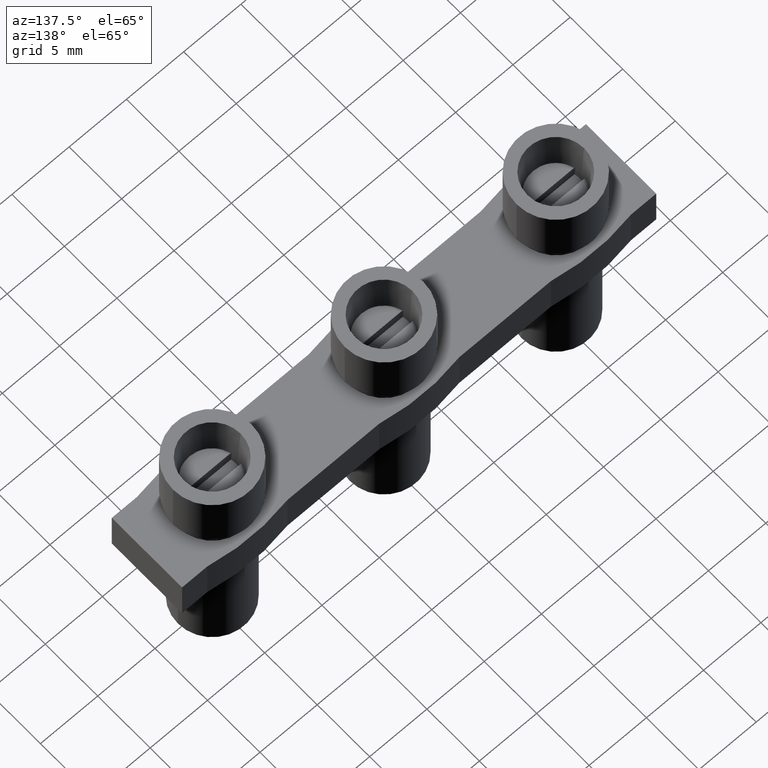
[diagram: clean part render]
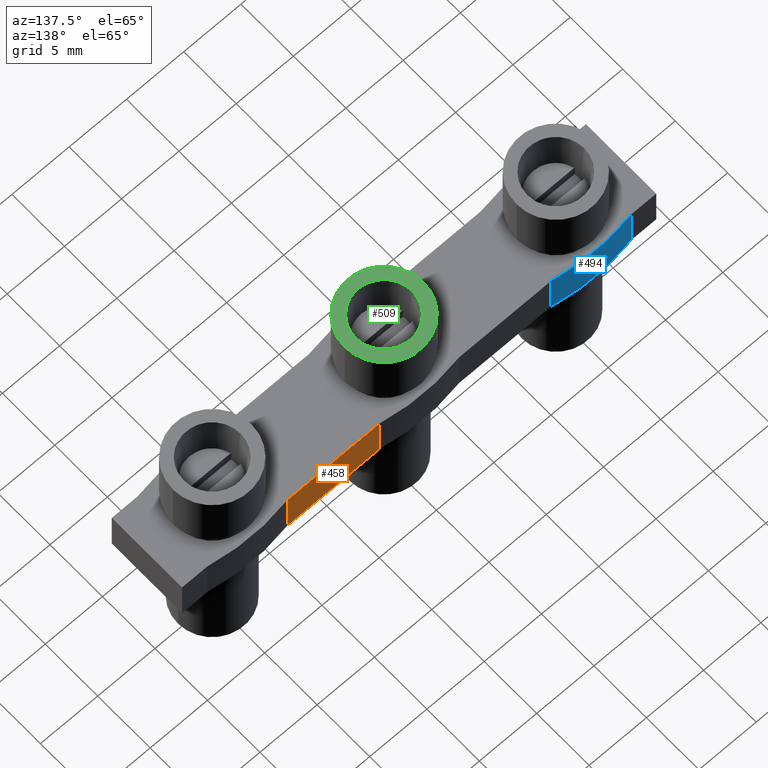
[diagram: same view with three faces highlighted in distinct colors, each labeled with its STEP entity id]
A machine part, auxiliary view with three faces highlighted in distinct colors.
Their STEP definitions:

[orange] entity #458 — the highlighted planar face has unit normal (0, -1, 0).
#181 = EDGE_CURVE ( 'NONE', #4221, #4340, #3828, .T. ) ;
#206 = EDGE_CURVE ( 'NONE', #4221, #4260, #3917, .T. ) ;
#218 = EDGE_CURVE ( 'NONE', #4279, #4340, #4010, .T. ) ;
#240 = EDGE_CURVE ( 'NONE', #4279, #4260, #4054, .T. ) ;
#458 = ADVANCED_FACE ( 'NONE', ( #2810 ), #2834, .F. ) ;
#581 = ORIENTED_EDGE ( 'NONE', *, *, #218, .F. ) ;
#650 = ORIENTED_EDGE ( 'NONE', *, *, #181, .T. ) ;
#664 = ORIENTED_EDGE ( 'NONE', *, *, #240, .T. ) ;
#666 = ORIENTED_EDGE ( 'NONE', *, *, #206, .F. ) ;
#706 = EDGE_LOOP ( 'NONE', ( #581, #664, #666, #650 ) ) ;
#2594 = CARTESIAN_POINT ( 'NONE',  ( 26.50000000000156000, 3.350000000000141800, -0.9000000000000014700 ) ) ;
#2644 = CARTESIAN_POINT ( 'NONE',  ( 18.50000000000144600, 3.350000000000150200, -4.800000000000001600 ) ) ;
#2654 = CARTESIAN_POINT ( 'NONE',  ( 18.50000000000169500, 3.350000000000141800, -0.9000000000000014700 ) ) ;
#2810 = FACE_OUTER_BOUND ( 'NONE', #706, .T. ) ;
#2813 = CARTESIAN_POINT ( 'NONE',  ( 46.15000000000001300, 3.350000000000145300, -0.9000000000000014700 ) ) ;
#2834 = PLANE ( 'NONE',  #4901 ) ;
#2845 = DIRECTION ( 'NONE',  ( 1.245679091791856200E-016, -1.000000000000000000, 0.0000000000000000000 ) ) ;
#2846 = DIRECTION ( 'NONE',  ( 1.000000000000000000, 1.245679091791856200E-016, 0.0000000000000000000 ) ) ;
#3828 = LINE ( 'NONE', #3843, #5235 ) ;
#3829 = DIRECTION ( 'NONE',  ( -0.0000000000000000000, -0.0000000000000000000, -1.000000000000000000 ) ) ;
#3843 = CARTESIAN_POINT ( 'NONE',  ( 26.50000000000164100, 3.350000000000150600, -11.80160695840604700 ) ) ;
#3907 = DIRECTION ( 'NONE',  ( -1.000000000000000000, -1.245679091791856200E-016, -0.0000000000000000000 ) ) ;
#3917 = LINE ( 'NONE', #3936, #5271 ) ;
#3936 = CARTESIAN_POINT ( 'NONE',  ( 46.15000000000001300, 3.350000000000145300, -0.9000000000000014700 ) ) ;
#4006 = CARTESIAN_POINT ( 'NONE',  ( -47.85000000000001600, 3.350000000000150200, -4.800000000000001600 ) ) ;
#4010 = LINE ( 'NONE', #4006, #5256 ) ;
#4015 = DIRECTION ( 'NONE',  ( 1.000000000000000000, -0.0000000000000000000, 0.0000000000000000000 ) ) ;
#4054 = LINE ( 'NONE', #4055, #5288 ) ;
#4055 = CARTESIAN_POINT ( 'NONE',  ( 18.50000000000173000, 3.350000000000084500, -11.80160695840604700 ) ) ;
#4080 = DIRECTION ( 'NONE',  ( 0.0000000000000000000, 0.0000000000000000000, 1.000000000000000000 ) ) ;
#4221 = VERTEX_POINT ( 'NONE', #2594 ) ;
#4260 = VERTEX_POINT ( 'NONE', #2654 ) ;
#4279 = VERTEX_POINT ( 'NONE', #2644 ) ;
#4340 = VERTEX_POINT ( 'NONE', #4681 ) ;
#4681 = CARTESIAN_POINT ( 'NONE',  ( 26.50000000000156000, 3.350000000000141800, -4.800000000000001600 ) ) ;
#4901 = AXIS2_PLACEMENT_3D ( 'NONE', #2813, #2845, #2846 ) ;
#5235 = VECTOR ( 'NONE', #3829, 1000.000000000000000 ) ;
#5256 = VECTOR ( 'NONE', #4015, 1000.000000000000000 ) ;
#5271 = VECTOR ( 'NONE', #3907, 1000.000000000000000 ) ;
#5288 = VECTOR ( 'NONE', #4080, 1000.000000000000000 ) ;

[blue] entity #494 — the highlighted cylindrical surface (partial cylindrical patch) has radius 17.675 mm, axis along (0, 0, 1).
#134 = EDGE_CURVE ( 'NONE', #4241, #4343, #5175, .T. ) ;
#216 = EDGE_CURVE ( 'NONE', #4227, #4272, #5260, .T. ) ;
#222 = EDGE_CURVE ( 'NONE', #4241, #4227, #4027, .T. ) ;
#345 = EDGE_CURVE ( 'NONE', #4272, #4343, #1948, .T. ) ;
#494 = ADVANCED_FACE ( 'NONE', ( #3121 ), #3090, .T. ) ;
#824 = EDGE_LOOP ( 'NONE', ( #1217, #1208, #1216, #1190 ) ) ;
#1190 = ORIENTED_EDGE ( 'NONE', *, *, #134, .F. ) ;
#1208 = ORIENTED_EDGE ( 'NONE', *, *, #216, .T. ) ;
#1216 = ORIENTED_EDGE ( 'NONE', *, *, #345, .T. ) ;
#1217 = ORIENTED_EDGE ( 'NONE', *, *, #222, .T. ) ;
#1935 = DIRECTION ( 'NONE',  ( 0.0000000000000000000, 0.0000000000000000000, 1.000000000000000000 ) ) ;
#1948 = LINE ( 'NONE', #1950, #4820 ) ;
#1950 = CARTESIAN_POINT ( 'NONE',  ( -3.500000000000079000, 3.350000000000082200, -11.80160695840604700 ) ) ;
#2620 = CARTESIAN_POINT ( 'NONE',  ( 3.500000000000087900, 3.350000000000080500, -4.800000000000001600 ) ) ;
#2623 = CARTESIAN_POINT ( 'NONE',  ( 3.500000000000087900, 3.350000000000080500, -0.9000000000000014700 ) ) ;
#2690 = CARTESIAN_POINT ( 'NONE',  ( -3.500000000000093700, 3.350000000000082200, -4.800000000000001600 ) ) ;
#3090 = CYLINDRICAL_SURFACE ( 'NONE', #4950, 17.67500000000479000 ) ;
#3100 = CARTESIAN_POINT ( 'NONE',  ( 5.128276275852789100E-015, -13.97500000000478900, -11.80874453807542700 ) ) ;
#3121 = FACE_OUTER_BOUND ( 'NONE', #824, .T. ) ;
#3128 = DIRECTION ( 'NONE',  ( 1.000000000000000000, 0.0000000000000000000, 0.0000000000000000000 ) ) ;
#3129 = DIRECTION ( 'NONE',  ( 0.0000000000000000000, 0.0000000000000000000, 1.000000000000000000 ) ) ;
#3689 = CARTESIAN_POINT ( 'NONE',  ( 5.128276275852789100E-015, -13.97500000000478900, -0.9000000000000014700 ) ) ;
#3690 = DIRECTION ( 'NONE',  ( -1.000000000000000000, 0.0000000000000000000, 0.0000000000000000000 ) ) ;
#3695 = DIRECTION ( 'NONE',  ( 0.0000000000000000000, 0.0000000000000000000, 1.000000000000000000 ) ) ;
#4009 = DIRECTION ( 'NONE',  ( -0.0000000000000000000, -0.0000000000000000000, 1.000000000000000000 ) ) ;
#4026 = DIRECTION ( 'NONE',  ( -1.000000000000000000, 2.649931193853527400E-015, 0.0000000000000000000 ) ) ;
#4027 = LINE ( 'NONE', #4046, #5272 ) ;
#4032 = CARTESIAN_POINT ( 'NONE',  ( 5.128276275852789100E-015, -13.97500000000478900, -4.800000000000001600 ) ) ;
#4046 = CARTESIAN_POINT ( 'NONE',  ( 3.500000000000011500, 3.350000000000088900, -11.80160695840604700 ) ) ;
#4049 = DIRECTION ( 'NONE',  ( -0.0000000000000000000, -0.0000000000000000000, -1.000000000000000000 ) ) ;
#4227 = VERTEX_POINT ( 'NONE', #2620 ) ;
#4241 = VERTEX_POINT ( 'NONE', #2623 ) ;
#4272 = VERTEX_POINT ( 'NONE', #2690 ) ;
#4343 = VERTEX_POINT ( 'NONE', #4717 ) ;
#4717 = CARTESIAN_POINT ( 'NONE',  ( -3.500000000000049700, 3.350000000000085800, -0.9000000000000014700 ) ) ;
#4820 = VECTOR ( 'NONE', #1935, 1000.000000000000000 ) ;
#4950 = AXIS2_PLACEMENT_3D ( 'NONE', #3100, #3129, #3128 ) ;
#5136 = AXIS2_PLACEMENT_3D ( 'NONE', #3689, #3695, #3690 ) ;
#5175 = CIRCLE ( 'NONE', #5136, 17.67500000000479000 ) ;
#5260 = CIRCLE ( 'NONE', #5300, 17.67500000000479000 ) ;
#5272 = VECTOR ( 'NONE', #4049, 1000.000000000000000 ) ;
#5300 = AXIS2_PLACEMENT_3D ( 'NONE', #4032, #4009, #4026 ) ;

[green] entity #509 — the highlighted planar face has unit normal (0, 0, 1).
#140 = EDGE_CURVE ( 'NONE', #4176, #4160, #5163, .T. ) ;
#152 = EDGE_CURVE ( 'NONE', #4158, #4175, #5157, .T. ) ;
#236 = EDGE_CURVE ( 'NONE', #4160, #4176, #5283, .T. ) ;
#242 = EDGE_CURVE ( 'NONE', #4175, #4158, #5301, .T. ) ;
#509 = ADVANCED_FACE ( 'NONE', ( #3206, #3200 ), #3234, .T. ) ;
#789 = EDGE_LOOP ( 'NONE', ( #953, #1034 ) ) ;
#796 = EDGE_LOOP ( 'NONE', ( #1043, #1027 ) ) ;
#953 = ORIENTED_EDGE ( 'NONE', *, *, #242, .T. ) ;
#1027 = ORIENTED_EDGE ( 'NONE', *, *, #140, .F. ) ;
#1034 = ORIENTED_EDGE ( 'NONE', *, *, #152, .T. ) ;
#1043 = ORIENTED_EDGE ( 'NONE', *, *, #236, .F. ) ;
#2459 = DIRECTION ( 'NONE',  ( 1.000000000000000000, 2.491358183583711900E-016, 0.0000000000000000000 ) ) ;
#2465 = CARTESIAN_POINT ( 'NONE',  ( 15.00000000000165000, 1.868518637687989600E-015, 5.400000000000000400 ) ) ;
#2466 = DIRECTION ( 'NONE',  ( -0.0000000000000000000, -0.0000000000000000000, 1.000000000000000000 ) ) ;
#2528 = CARTESIAN_POINT ( 'NONE',  ( 11.57500000000165300, 5.957869311026002800E-016, 5.400000000000000400 ) ) ;
#2541 = CARTESIAN_POINT ( 'NONE',  ( 12.52499999999764800, 1.251907487250023900E-015, 5.400000000008731100 ) ) ;
#2559 = CARTESIAN_POINT ( 'NONE',  ( 17.47500000000565400, 2.182029705336495500E-015, 5.400000000008731100 ) ) ;
#2572 = CARTESIAN_POINT ( 'NONE',  ( 18.42500000000164900, 2.721808815565410300E-015, 5.400000000000000400 ) ) ;
#3194 = CARTESIAN_POINT ( 'NONE',  ( 15.00000000000165000, 1.868518637687989600E-015, 5.400000000000000400 ) ) ;
#3196 = DIRECTION ( 'NONE',  ( -1.000000000000000000, -2.491358183583711900E-016, 0.0000000000000000000 ) ) ;
#3200 = FACE_BOUND ( 'NONE', #796, .T. ) ;
#3203 = DIRECTION ( 'NONE',  ( 0.0000000000000000000, 0.0000000000000000000, 1.000000000000000000 ) ) ;
#3206 = FACE_OUTER_BOUND ( 'NONE', #789, .T. ) ;
#3234 = PLANE ( 'NONE',  #4959 ) ;
#3714 = CARTESIAN_POINT ( 'NONE',  ( 15.00000000000165000, 1.868518637687989600E-015, 5.400000000008731100 ) ) ;
#3715 = DIRECTION ( 'NONE',  ( 0.0000000000000000000, 0.0000000000000000000, 1.000000000000000000 ) ) ;
#3716 = DIRECTION ( 'NONE',  ( -1.000000000000000000, -2.491358183583711900E-016, 0.0000000000000000000 ) ) ;
#3734 = CARTESIAN_POINT ( 'NONE',  ( 15.00000000000165000, 1.868518637687989600E-015, 5.400000000000000400 ) ) ;
#3752 = DIRECTION ( 'NONE',  ( -0.0000000000000000000, -0.0000000000000000000, 1.000000000000000000 ) ) ;
#3762 = DIRECTION ( 'NONE',  ( 1.000000000000000000, 2.491358183583711900E-016, 0.0000000000000000000 ) ) ;
#4062 = DIRECTION ( 'NONE',  ( 0.0000000000000000000, 0.0000000000000000000, 1.000000000000000000 ) ) ;
#4066 = CARTESIAN_POINT ( 'NONE',  ( 15.00000000000165000, 1.868518637687989600E-015, 5.400000000008731100 ) ) ;
#4077 = DIRECTION ( 'NONE',  ( -1.000000000000000000, -2.491358183583711900E-016, 0.0000000000000000000 ) ) ;
#4158 = VERTEX_POINT ( 'NONE', #2528 ) ;
#4160 = VERTEX_POINT ( 'NONE', #2541 ) ;
#4175 = VERTEX_POINT ( 'NONE', #2572 ) ;
#4176 = VERTEX_POINT ( 'NONE', #2559 ) ;
#4959 = AXIS2_PLACEMENT_3D ( 'NONE', #3194, #3203, #3196 ) ;
#5140 = AXIS2_PLACEMENT_3D ( 'NONE', #3734, #3752, #3762 ) ;
#5157 = CIRCLE ( 'NONE', #5140, 3.424999999999997600 ) ;
#5163 = CIRCLE ( 'NONE', #5164, 2.475000000004001800 ) ;
#5164 = AXIS2_PLACEMENT_3D ( 'NONE', #3714, #3715, #3716 ) ;
#5261 = AXIS2_PLACEMENT_3D ( 'NONE', #2465, #2466, #2459 ) ;
#5279 = AXIS2_PLACEMENT_3D ( 'NONE', #4066, #4062, #4077 ) ;
#5283 = CIRCLE ( 'NONE', #5279, 2.475000000004001800 ) ;
#5301 = CIRCLE ( 'NONE', #5261, 3.424999999999997600 ) ;